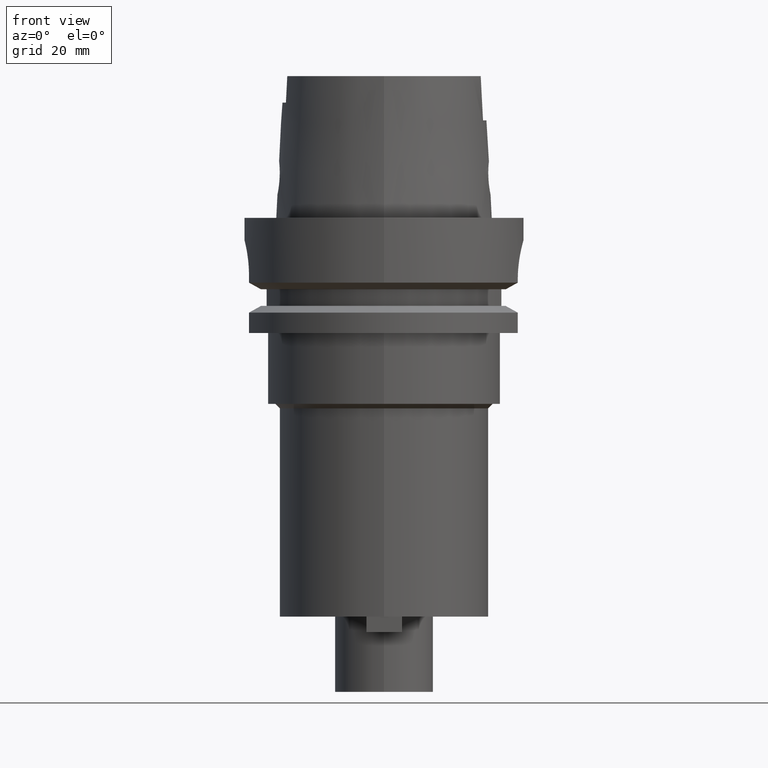
[diagram: clean part render]
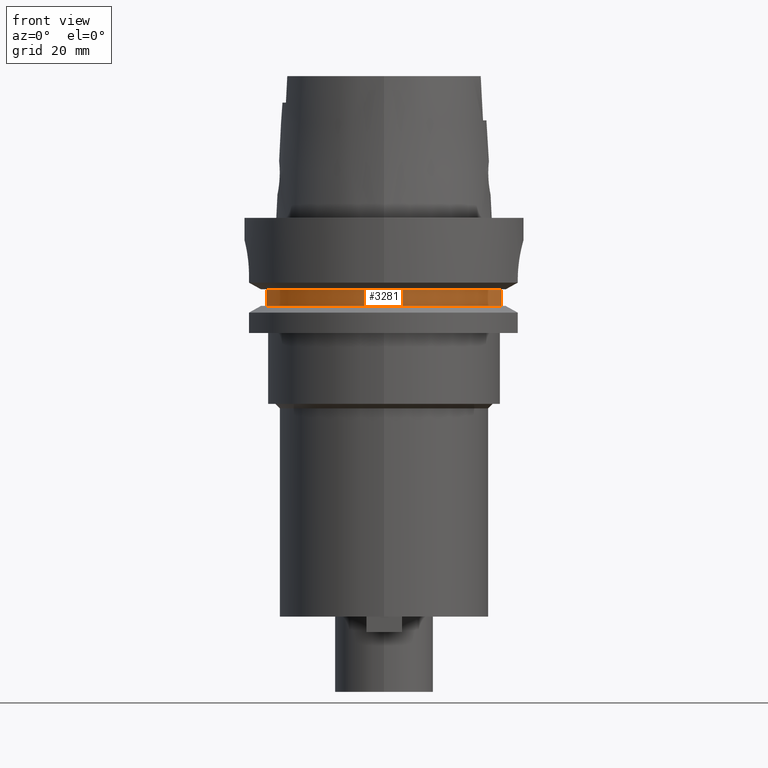
[diagram: same view with one face highlighted and labeled with its STEP entity id]
A machine part, front view. The second image highlights one B-rep face of the part: STEP entity #3281.
In plain terms, the highlighted cylindrical surface (partial cylindrical patch) has radius 27.5 mm, axis along (0, 0, -1).
Its self-contained STEP definition (entity closure, byte-faithful):
#892=CARTESIAN_POINT('',(0.E0,1.701646727415E-14,-1.6125E1));
#893=DIRECTION('',(0.E0,0.E0,-1.E0));
#894=DIRECTION('',(9.636363636364E-1,-2.672170628491E-1,0.E0));
#895=AXIS2_PLACEMENT_3D('',#892,#893,#894);
#900=CARTESIAN_POINT('',(0.E0,1.701646727415E-14,-1.6125E1));
#901=DIRECTION('',(0.E0,0.E0,-1.E0));
#902=DIRECTION('',(0.E0,-1.E0,0.E0));
#903=AXIS2_PLACEMENT_3D('',#900,#901,#902);
#1167=CARTESIAN_POINT('',(0.E0,1.701646727415E-14,-1.9875E1));
#1168=DIRECTION('',(0.E0,0.E0,1.E0));
#1169=DIRECTION('',(-9.636363636364E-1,-2.672170628491E-1,0.E0));
#1170=AXIS2_PLACEMENT_3D('',#1167,#1168,#1169);
#1175=CARTESIAN_POINT('',(0.E0,1.701646727415E-14,-1.9875E1));
#1176=DIRECTION('',(0.E0,0.E0,1.E0));
#1177=DIRECTION('',(0.E0,-1.E0,0.E0));
#1178=AXIS2_PLACEMENT_3D('',#1175,#1176,#1177);
#1206=DIRECTION('',(0.E0,0.E0,1.E0));
#1207=VECTOR('',#1206,3.75E0);
#1208=CARTESIAN_POINT('',(-2.65E1,-7.348469228350E0,-1.9875E1));
#1209=LINE('',#1208,#1207);
#1213=DIRECTION('',(0.E0,0.E0,-1.E0));
#1214=VECTOR('',#1213,3.75E0);
#1215=CARTESIAN_POINT('',(2.65E1,-7.348469228350E0,-1.6125E1));
#1216=LINE('',#1215,#1214);
#2398=CARTESIAN_POINT('',(-2.65E1,-7.348469228350E0,-1.9875E1));
#2400=VERTEX_POINT('',#2398);
#2401=CARTESIAN_POINT('',(-1.243449787580E-14,-2.75E1,-1.9875E1));
#2402=CARTESIAN_POINT('',(2.65E1,-7.348469228350E0,-1.9875E1));
#2403=VERTEX_POINT('',#2401);
#2404=VERTEX_POINT('',#2402);
#2441=CARTESIAN_POINT('',(-2.65E1,-7.348469228350E0,-1.6125E1));
#2442=VERTEX_POINT('',#2441);
#2468=CARTESIAN_POINT('',(2.65E1,-7.348469228350E0,-1.6125E1));
#2469=VERTEX_POINT('',#2468);
#2478=CARTESIAN_POINT('',(1.776356839400E-14,-2.75E1,-1.6125E1));
#2479=VERTEX_POINT('',#2478);
#3268=CARTESIAN_POINT('',(0.E0,1.701646727415E-14,3.895E1));
#3269=DIRECTION('',(0.E0,0.E0,-1.E0));
#3270=DIRECTION('',(0.E0,-1.E0,0.E0));
#3271=AXIS2_PLACEMENT_3D('',#3268,#3269,#3270);
#3272=CYLINDRICAL_SURFACE('',#3271,2.75E1);
#3273=ORIENTED_EDGE('',*,*,#3072,.T.);
#3274=ORIENTED_EDGE('',*,*,#3048,.F.);
#3275=ORIENTED_EDGE('',*,*,#3046,.F.);
#3276=ORIENTED_EDGE('',*,*,#3180,.T.);
#3277=ORIENTED_EDGE('',*,*,#3256,.F.);
#3278=ORIENTED_EDGE('',*,*,#3254,.F.);
#3279=EDGE_LOOP('',(#3273,#3274,#3275,#3276,#3277,#3278));
#3280=FACE_OUTER_BOUND('',#3279,.F.);
#896=CIRCLE('',#895,2.75E1);
#904=CIRCLE('',#903,2.75E1);
#1171=CIRCLE('',#1170,2.75E1);
#1179=CIRCLE('',#1178,2.75E1);
#3046=EDGE_CURVE('',#2469,#2479,#896,.T.);
#3048=EDGE_CURVE('',#2479,#2442,#904,.T.);
#3072=EDGE_CURVE('',#2400,#2442,#1209,.T.);
#3180=EDGE_CURVE('',#2469,#2404,#1216,.T.);
#3254=EDGE_CURVE('',#2400,#2403,#1171,.T.);
#3256=EDGE_CURVE('',#2403,#2404,#1179,.T.);
#3281=ADVANCED_FACE('',(#3280),#3272,.T.);